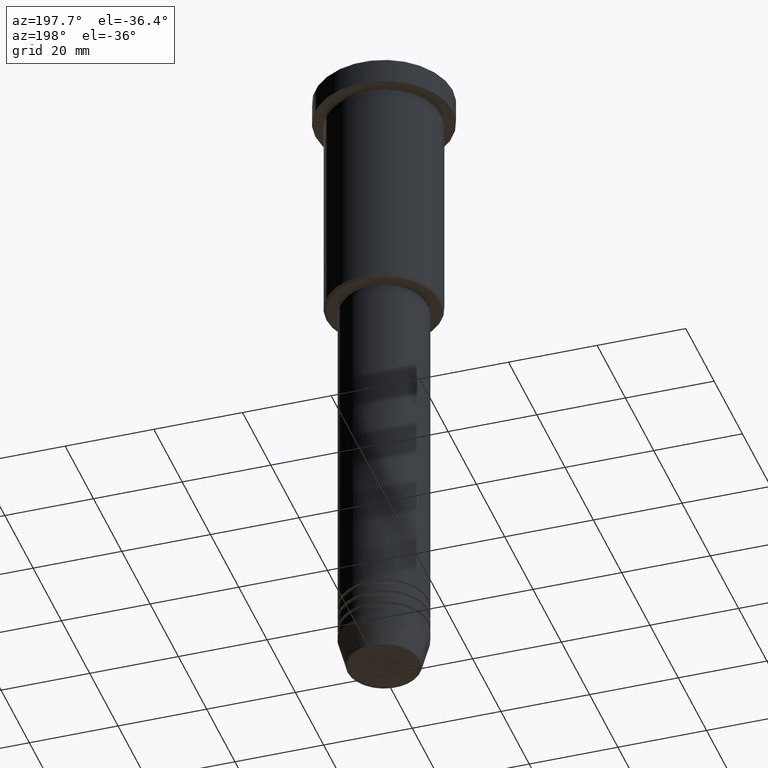
[diagram: clean part render]
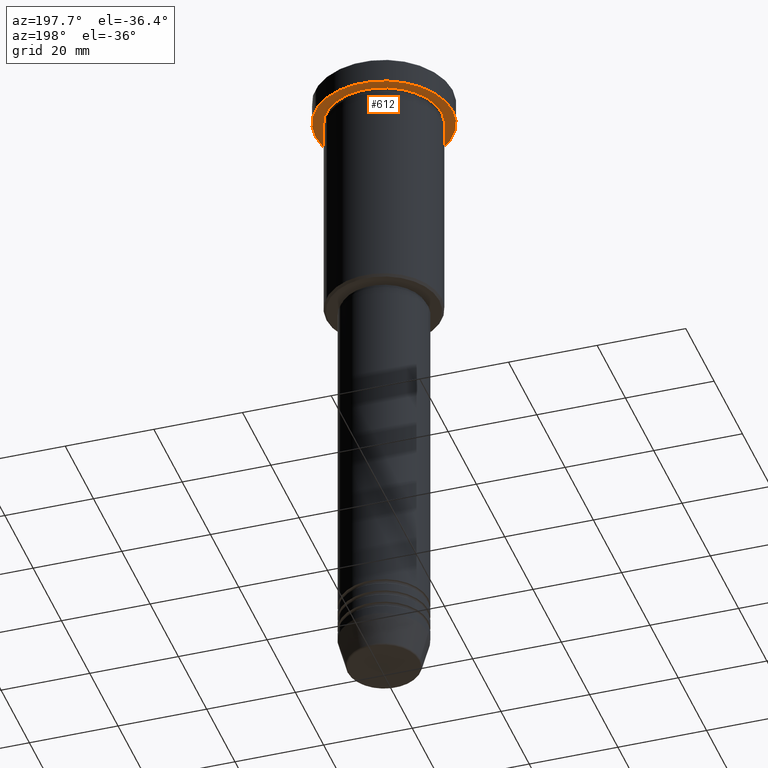
[diagram: same view with one face highlighted and labeled with its STEP entity id]
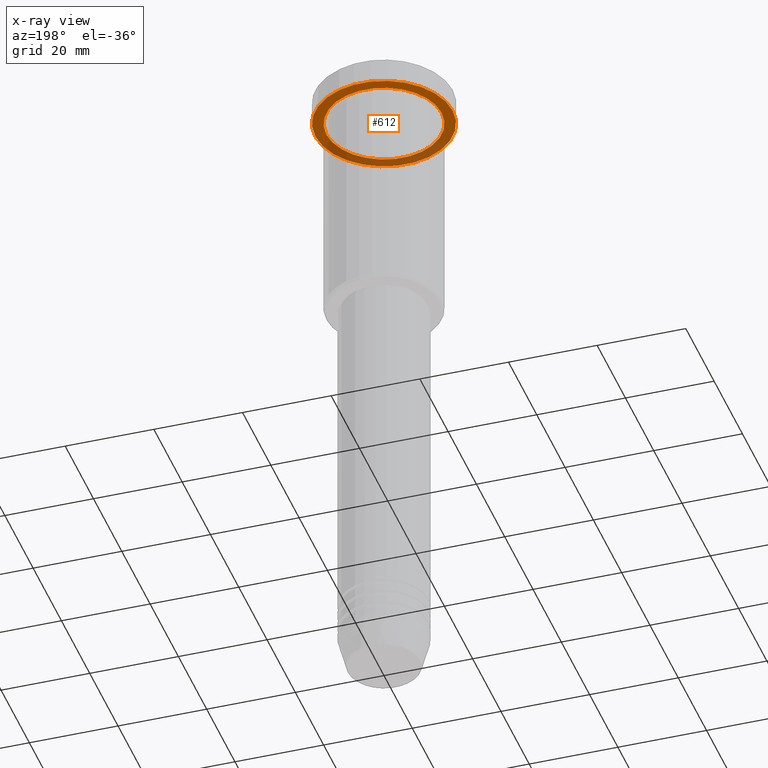
[diagram: x-ray of the same camera — body ghosted, the highlighted face saturated]
A machine part, auxiliary view. The second image highlights one B-rep face of the part: STEP entity #612.
The next image is the same camera in x-ray: the body ghosted, the highlighted face saturated — about 32% of this face is hidden behind the body in this view.
In plain terms, the highlighted planar face has unit normal (0, 0, -1).
Its self-contained STEP definition (entity closure, byte-faithful):
#45 = CARTESIAN_POINT ( 'NONE',  ( -15.50000000000000000, 1.898202538678397557E-15, -5.999999999999995559 ) ) ;
#77 = CARTESIAN_POINT ( 'NONE',  ( 13.00000000000000000, 1.592040838891559095E-15, -5.999999999999994671 ) ) ;
#80 = PLANE ( 'NONE',  #537 ) ;
#94 = FACE_OUTER_BOUND ( 'NONE', #1127, .T. ) ;
#110 = EDGE_CURVE ( 'NONE', #963, #260, #1157, .T. ) ;
#140 = AXIS2_PLACEMENT_3D ( 'NONE', #1175, #1092, #646 ) ;
#192 = VERTEX_POINT ( 'NONE', #496 ) ;
#193 = CARTESIAN_POINT ( 'NONE',  ( 0.000000000000000000, 15.50000000000000000, -5.999999999999995559 ) ) ;
#206 = ORIENTED_EDGE ( 'NONE', *, *, #110, .F. ) ;
#260 = VERTEX_POINT ( 'NONE', #45 ) ;
#290 = EDGE_LOOP ( 'NONE', ( #1167, #461 ) ) ;
#340 = AXIS2_PLACEMENT_3D ( 'NONE', #755, #555, #924 ) ;
#349 = EDGE_CURVE ( 'NONE', #192, #428, #396, .T. ) ;
#396 = CIRCLE ( 'NONE', #1060, 13.00000000000000000 ) ;
#428 = VERTEX_POINT ( 'NONE', #77 ) ;
#439 = CARTESIAN_POINT ( 'NONE',  ( 15.50000000000000000, 0.000000000000000000, -5.999999999999995559 ) ) ;
#461 = ORIENTED_EDGE ( 'NONE', *, *, #518, .T. ) ;
#468 = DIRECTION ( 'NONE',  ( 0.000000000000000000, 0.000000000000000000, -1.000000000000000000 ) ) ;
#494 = EDGE_CURVE ( 'NONE', #260, #963, #864, .T. ) ;
#496 = CARTESIAN_POINT ( 'NONE',  ( -13.00000000000000000, 0.000000000000000000, -5.999999999999994671 ) ) ;
#504 = CARTESIAN_POINT ( 'NONE',  ( 0.000000000000000000, 0.000000000000000000, -5.999999999999995559 ) ) ;
#518 = EDGE_CURVE ( 'NONE', #428, #192, #676, .T. ) ;
#537 = AXIS2_PLACEMENT_3D ( 'NONE', #193, #468, #935 ) ;
#555 = DIRECTION ( 'NONE',  ( -0.000000000000000000, -0.000000000000000000, 1.000000000000000000 ) ) ;
#612 = ADVANCED_FACE ( 'NONE', ( #822, #94 ), #80, .T. ) ;
#621 = CARTESIAN_POINT ( 'NONE',  ( 0.000000000000000000, 0.000000000000000000, -5.999999999999995559 ) ) ;
#646 = DIRECTION ( 'NONE',  ( -1.000000000000000000, 0.000000000000000000, 0.000000000000000000 ) ) ;
#676 = CIRCLE ( 'NONE', #140, 13.00000000000000000 ) ;
#723 = DIRECTION ( 'NONE',  ( -0.000000000000000000, -0.000000000000000000, 1.000000000000000000 ) ) ;
#755 = CARTESIAN_POINT ( 'NONE',  ( 0.000000000000000000, 0.000000000000000000, -5.999999999999995559 ) ) ;
#787 = DIRECTION ( 'NONE',  ( -1.000000000000000000, 0.000000000000000000, 0.000000000000000000 ) ) ;
#805 = ORIENTED_EDGE ( 'NONE', *, *, #494, .F. ) ;
#822 = FACE_BOUND ( 'NONE', #290, .T. ) ;
#833 = DIRECTION ( 'NONE',  ( 1.000000000000000000, 0.000000000000000000, 0.000000000000000000 ) ) ;
#864 = CIRCLE ( 'NONE', #903, 15.50000000000000000 ) ;
#867 = DIRECTION ( 'NONE',  ( -0.000000000000000000, -0.000000000000000000, 1.000000000000000000 ) ) ;
#903 = AXIS2_PLACEMENT_3D ( 'NONE', #621, #723, #833 ) ;
#924 = DIRECTION ( 'NONE',  ( 1.000000000000000000, 0.000000000000000000, 0.000000000000000000 ) ) ;
#935 = DIRECTION ( 'NONE',  ( -1.000000000000000000, 0.000000000000000000, -0.000000000000000000 ) ) ;
#963 = VERTEX_POINT ( 'NONE', #439 ) ;
#1060 = AXIS2_PLACEMENT_3D ( 'NONE', #504, #867, #787 ) ;
#1092 = DIRECTION ( 'NONE',  ( -0.000000000000000000, -0.000000000000000000, 1.000000000000000000 ) ) ;
#1127 = EDGE_LOOP ( 'NONE', ( #206, #805 ) ) ;
#1157 = CIRCLE ( 'NONE', #340, 15.50000000000000000 ) ;
#1167 = ORIENTED_EDGE ( 'NONE', *, *, #349, .T. ) ;
#1175 = CARTESIAN_POINT ( 'NONE',  ( 0.000000000000000000, 0.000000000000000000, -5.999999999999995559 ) ) ;